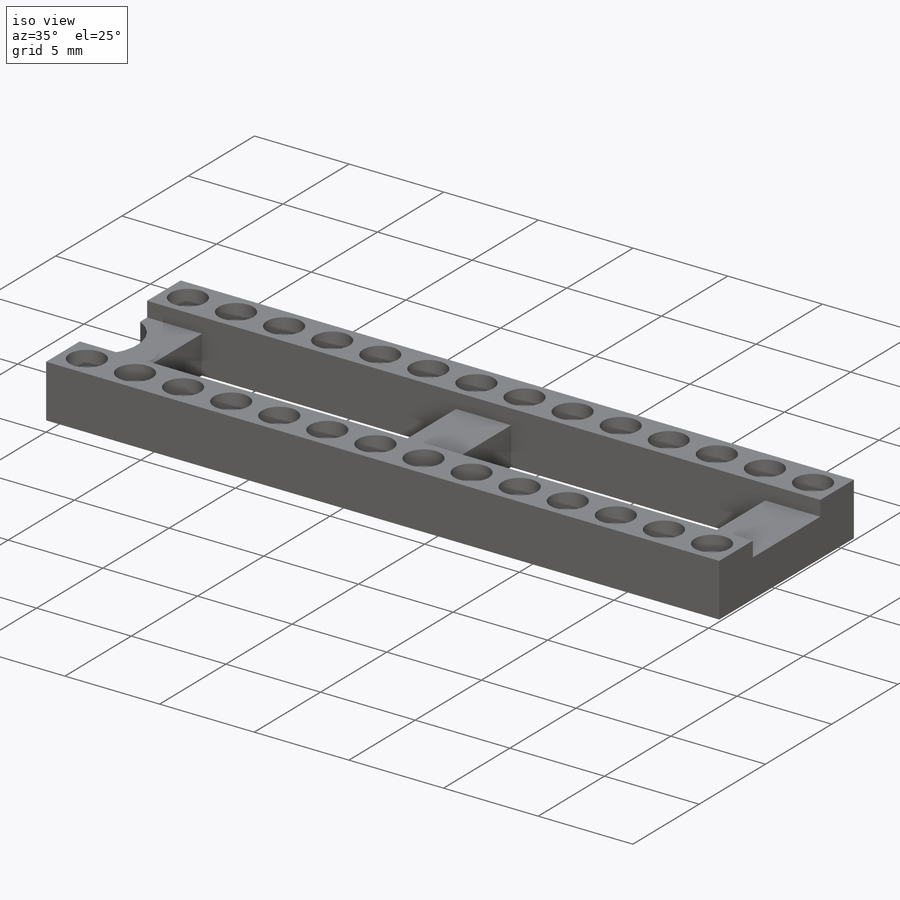
[diagram: iso view]
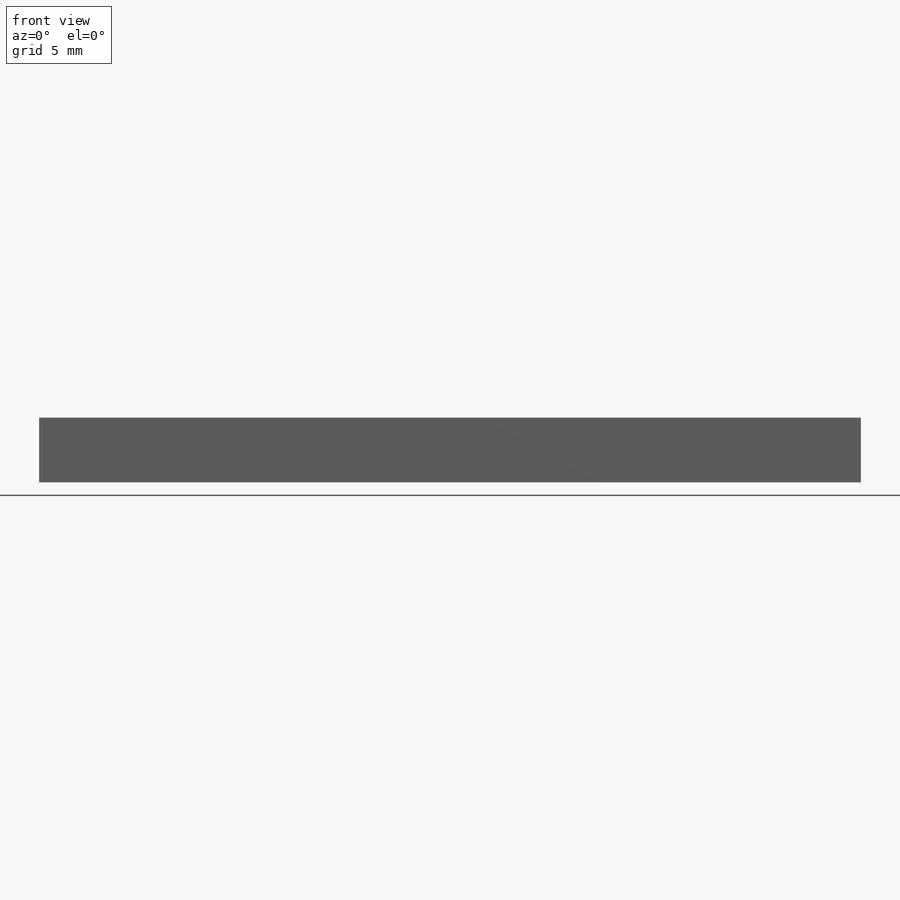
[diagram: front view]
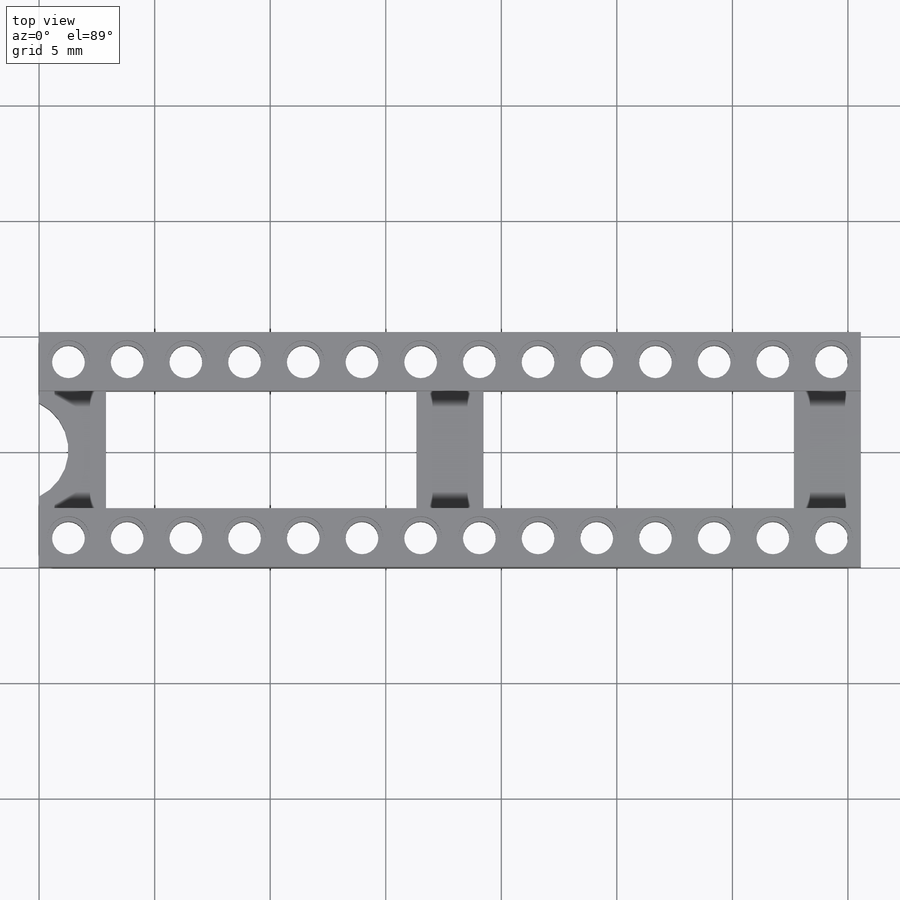
[diagram: top view]
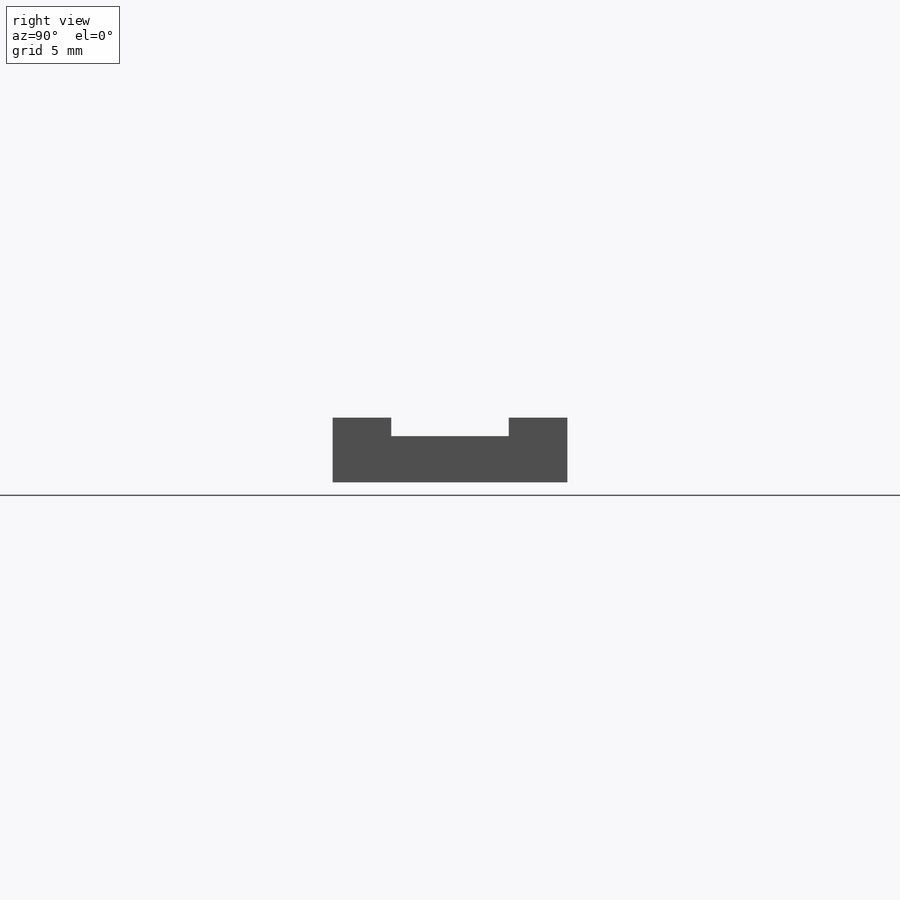
[diagram: right view]
SOLIDWORKS PART (.sldprt)
format: sldprt  version: not decoded by parser v0  size: 314,368 bytes
history: native  units: mm
features: sketch x5, cut_extrude x4, material x1, extrude x1 (+13 scaffold rows collapsed)
feature tree (24):
  scaffold x13  (default folders/planes/origin — collapsed)
  material  "Material <not specified>"
  sketch  "Sketch1"  dims[D1=10.16mm D2=35.56mm]
  extrude  "Boss-Extrude1"  Depth=2.8mm
  sketch  "Sketch3"  dims[c1.D1=1.83mm c1.D4=1.83mm c1.D5=1.83mm c2.D4=1.27mm c2.D5=1.27mm c2.D2=14.0 c2.D3=2.0]
  cut_extrude  "Cut-Extrude1"  Depth=0.78mm
  sketch  "Sketch4"  dims[c1.D2=1.83mm c1.D1=2.54mm c2.D2=2.54mm]
  cut_extrude  "Cut-Extrude2"  Depth=0.8mm
  sketch  "Sketch5"  dims[c1.D1=4.5mm c1.D2=1.83mm c2.D1=2.54mm c2.D2=0.915mm c2.D3=2.9mm c2.D4=2.9mm]
  cut_extrude  "Cut-Extrude3"  [1 undecoded]
  sketch  "Sketch6"  dims[D1=1.42mm D2=14.0 D3=2.0]
  cut_extrude  "Cut-Extrude4"  [1 undecoded]
decode coverage: 8 of 10 modeling features carry decoded parameters
note: 2 parameter values undecoded
note: suppression state not decoded; provenance and decode notes live in map.json
